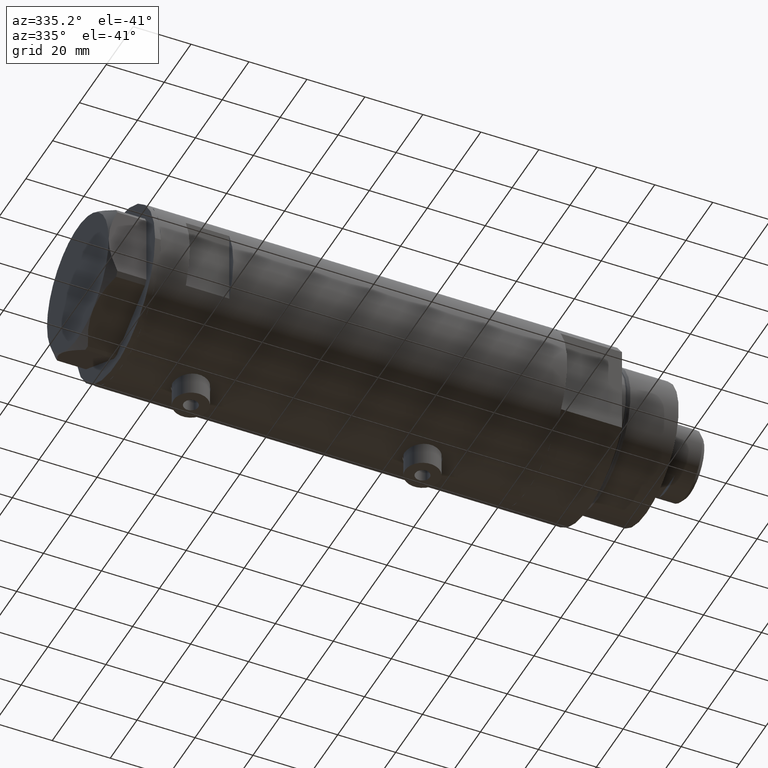
[diagram: clean part render]
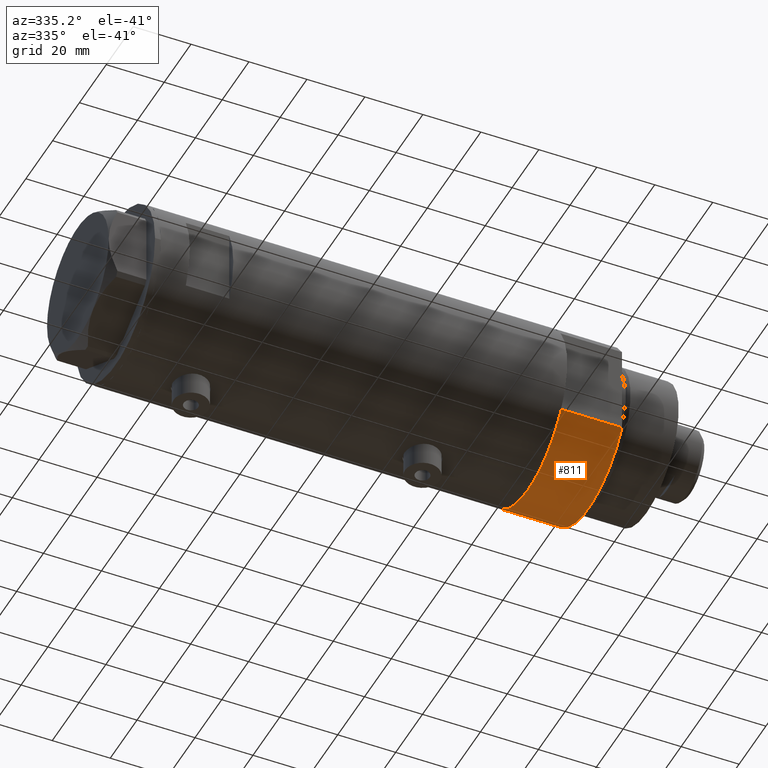
[diagram: same view with one face highlighted and labeled with its STEP entity id]
A machine part, auxiliary view. The second image highlights one B-rep face of the part: STEP entity #811.
In plain terms, the highlighted cylindrical surface (partial cylindrical patch) has radius 29.5 mm, axis along (-1, -0, 0).
Its self-contained STEP definition (entity closure, byte-faithful):
#16 = CARTESIAN_POINT ( 'NONE',  ( 15.66045976336583045, 24.99999999999999645, 20.99999999999999645 ) ) ;
#104 = VERTEX_POINT ( 'NONE', #16 ) ;
#304 = CARTESIAN_POINT ( 'NONE',  ( 0.000000000000000000, 0.000000000000000000, 0.000000000000000000 ) ) ;
#310 = VERTEX_POINT ( 'NONE', #3570 ) ;
#375 = CARTESIAN_POINT ( 'NONE',  ( 0.000000000000000000, 0.000000000000000000, 21.00000000000000000 ) ) ;
#584 = AXIS2_PLACEMENT_3D ( 'NONE', #375, #1067, #1822 ) ;
#700 = EDGE_CURVE ( 'NONE', #1215, #104, #1569, .T. ) ;
#782 = CYLINDRICAL_SURFACE ( 'NONE', #2530, 29.50000000000000355 ) ;
#811 = ADVANCED_FACE ( 'NONE', ( #2367 ), #782, .T. ) ;
#890 = CIRCLE ( 'NONE', #961, 29.50000000000000355 ) ;
#961 = AXIS2_PLACEMENT_3D ( 'NONE', #304, #4192, #2305 ) ;
#969 = CARTESIAN_POINT ( 'NONE',  ( 15.66045976336583401, 25.00000000000000000, 0.000000000000000000 ) ) ;
#1067 = DIRECTION ( 'NONE',  ( 0.000000000000000000, 0.000000000000000000, 1.000000000000000000 ) ) ;
#1104 = CARTESIAN_POINT ( 'NONE',  ( 15.66045976336583401, -25.00000000000000000, 0.000000000000000000 ) ) ;
#1215 = VERTEX_POINT ( 'NONE', #3824 ) ;
#1224 = EDGE_LOOP ( 'NONE', ( #1524, #2817, #3899, #1628 ) ) ;
#1491 = DIRECTION ( 'NONE',  ( -0.000000000000000000, -0.000000000000000000, -1.000000000000000000 ) ) ;
#1524 = ORIENTED_EDGE ( 'NONE', *, *, #700, .F. ) ;
#1569 = CIRCLE ( 'NONE', #584, 29.50000000000000355 ) ;
#1628 = ORIENTED_EDGE ( 'NONE', *, *, #1706, .T. ) ;
#1706 = EDGE_CURVE ( 'NONE', #4073, #104, #2776, .T. ) ;
#1822 = DIRECTION ( 'NONE',  ( 1.000000000000000000, 0.000000000000000000, 0.000000000000000000 ) ) ;
#1951 = DIRECTION ( 'NONE',  ( -0.000000000000000000, -0.000000000000000000, 1.000000000000000000 ) ) ;
#2176 = DIRECTION ( 'NONE',  ( -0.000000000000000000, -0.000000000000000000, 1.000000000000000000 ) ) ;
#2305 = DIRECTION ( 'NONE',  ( 1.000000000000000000, 0.000000000000000000, 0.000000000000000000 ) ) ;
#2341 = LINE ( 'NONE', #1104, #2380 ) ;
#2367 = FACE_OUTER_BOUND ( 'NONE', #1224, .T. ) ;
#2377 = EDGE_CURVE ( 'NONE', #310, #4073, #890, .T. ) ;
#2380 = VECTOR ( 'NONE', #1951, 1000.000000000000000 ) ;
#2530 = AXIS2_PLACEMENT_3D ( 'NONE', #4519, #1491, #3461 ) ;
#2776 = LINE ( 'NONE', #969, #3778 ) ;
#2817 = ORIENTED_EDGE ( 'NONE', *, *, #3806, .F. ) ;
#2953 = CARTESIAN_POINT ( 'NONE',  ( 15.66045976336582690, 25.00000000000000000, 0.000000000000000000 ) ) ;
#3461 = DIRECTION ( 'NONE',  ( -1.000000000000000000, 0.000000000000000000, 0.000000000000000000 ) ) ;
#3570 = CARTESIAN_POINT ( 'NONE',  ( 15.66045976336583401, -25.00000000000000000, 0.000000000000000000 ) ) ;
#3778 = VECTOR ( 'NONE', #2176, 1000.000000000000000 ) ;
#3806 = EDGE_CURVE ( 'NONE', #310, #1215, #2341, .T. ) ;
#3824 = CARTESIAN_POINT ( 'NONE',  ( 15.66045976336583045, -25.00000000000000000, 21.00000000000000355 ) ) ;
#3899 = ORIENTED_EDGE ( 'NONE', *, *, #2377, .T. ) ;
#4073 = VERTEX_POINT ( 'NONE', #2953 ) ;
#4192 = DIRECTION ( 'NONE',  ( 0.000000000000000000, 0.000000000000000000, 1.000000000000000000 ) ) ;
#4519 = CARTESIAN_POINT ( 'NONE',  ( 0.000000000000000000, 0.000000000000000000, 21.00000000000000000 ) ) ;